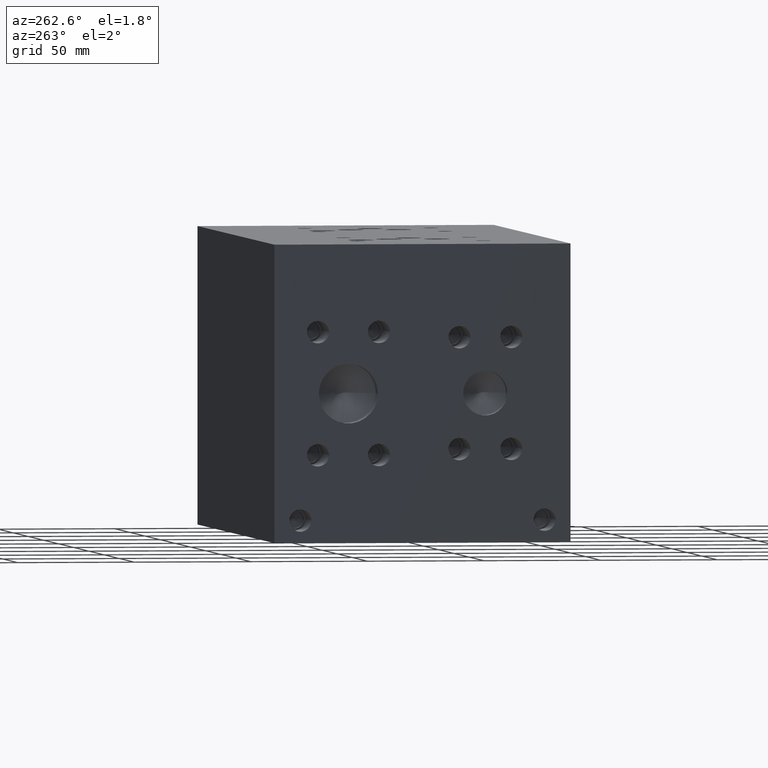
[diagram: clean part render]
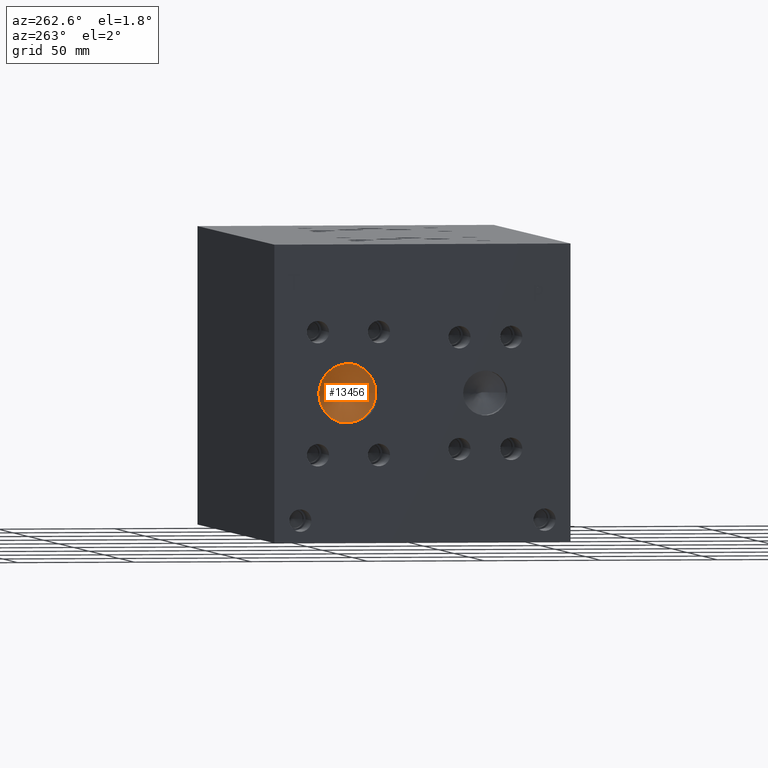
[diagram: same view with one face highlighted and labeled with its STEP entity id]
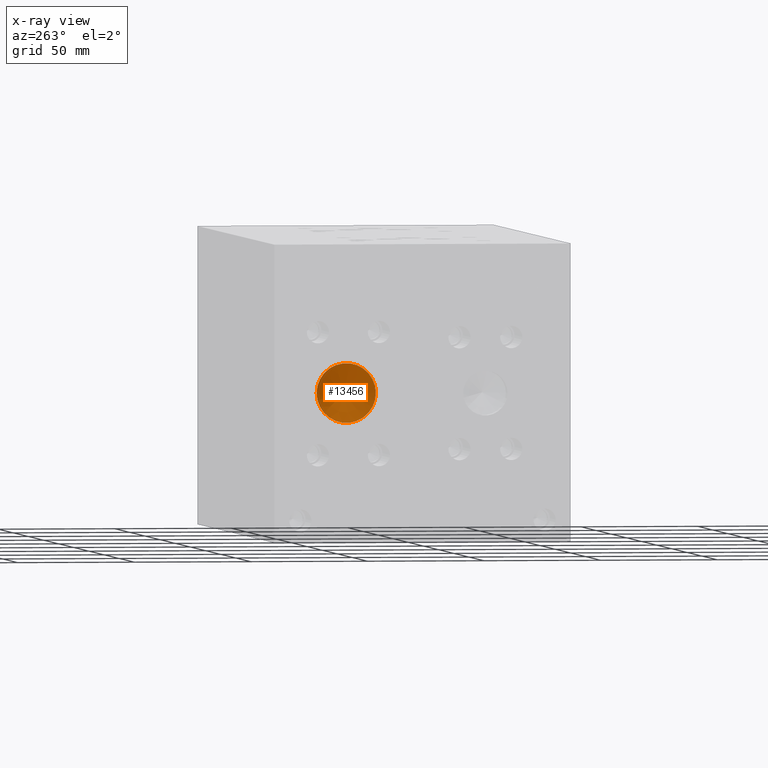
[diagram: x-ray of the same camera — body ghosted, the highlighted face saturated]
A machine part, auxiliary view. The second image highlights one B-rep face of the part: STEP entity #13456.
The next image is the same camera in x-ray: the body ghosted, the highlighted face saturated — about 0% of this face is hidden behind the body in this view.
In plain terms, the highlighted conical surface has half-angle 60 deg.
Its self-contained STEP definition (entity closure, byte-faithful):
#146=CONICAL_SURFACE('',#14225,6.35,1.0471975511966);
#383=CIRCLE('',#14226,12.7);
#384=CIRCLE('',#14227,12.7);
#1679=FACE_OUTER_BOUND('',#2491,.T.);
#2491=EDGE_LOOP('',(#11607,#11608,#11609,#11610));
#3758=LINE('',#22743,#4953);
#4953=VECTOR('',#16883,6.35);
#6439=VERTEX_POINT('',#22739);
#6440=VERTEX_POINT('',#22740);
#6441=VERTEX_POINT('',#22742);
#8240=EDGE_CURVE('',#6439,#6440,#383,.T.);
#8241=EDGE_CURVE('',#6440,#6441,#3758,.T.);
#8242=EDGE_CURVE('',#6440,#6439,#384,.T.);
#11607=ORIENTED_EDGE('',*,*,#8240,.T.);
#11608=ORIENTED_EDGE('',*,*,#8241,.T.);
#11609=ORIENTED_EDGE('',*,*,#8241,.F.);
#11610=ORIENTED_EDGE('',*,*,#8242,.T.);
#13456=ADVANCED_FACE('',(#1679),#146,.F.);
#14225=AXIS2_PLACEMENT_3D('',#22738,#16879,#16880);
#14226=AXIS2_PLACEMENT_3D('',#22741,#16881,#16882);
#14227=AXIS2_PLACEMENT_3D('',#22744,#16884,#16885);
#16879=DIRECTION('center_axis',(-1.,0.,0.));
#16880=DIRECTION('ref_axis',(0.,1.,0.));
#16881=DIRECTION('center_axis',(-1.,0.,0.));
#16882=DIRECTION('ref_axis',(0.,1.,0.));
#16883=DIRECTION('',(0.5,0.866025403784439,-1.06057523872491E-16));
#16884=DIRECTION('center_axis',(-1.,0.,0.));
#16885=DIRECTION('ref_axis',(0.,1.,0.));
#22738=CARTESIAN_POINT('Origin',(10.9985242093541,95.25,63.5));
#22739=CARTESIAN_POINT('',(7.33235,107.95,63.5));
#22740=CARTESIAN_POINT('',(7.33235,82.55,63.5));
#22741=CARTESIAN_POINT('Origin',(7.33235,95.25,63.5));
#22742=CARTESIAN_POINT('',(14.6646984187083,95.25,63.5));
#22743=CARTESIAN_POINT('',(10.9985242093541,88.9,63.5));
#22744=CARTESIAN_POINT('Origin',(7.33235,95.25,63.5));